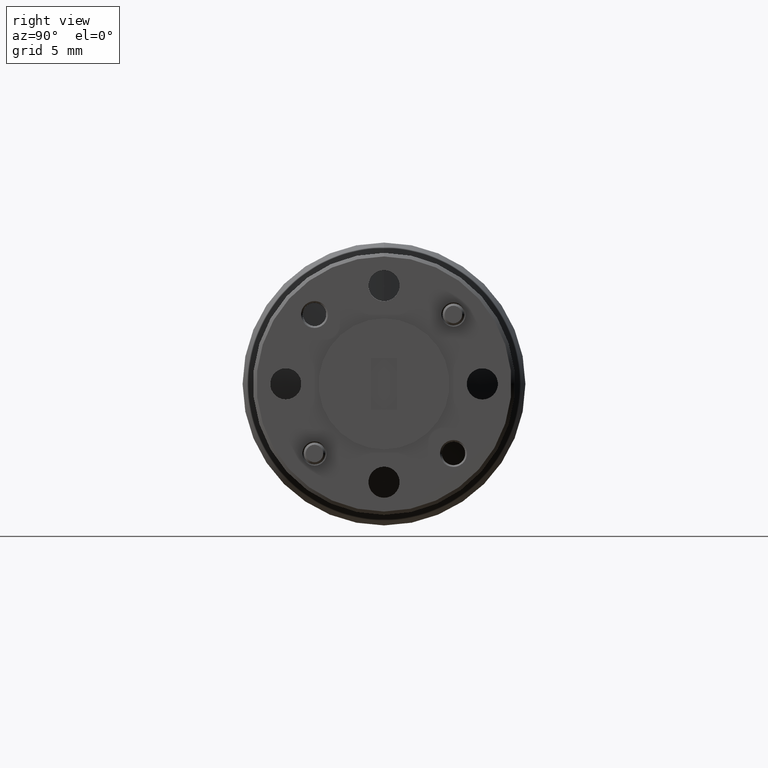
[diagram: clean part render]
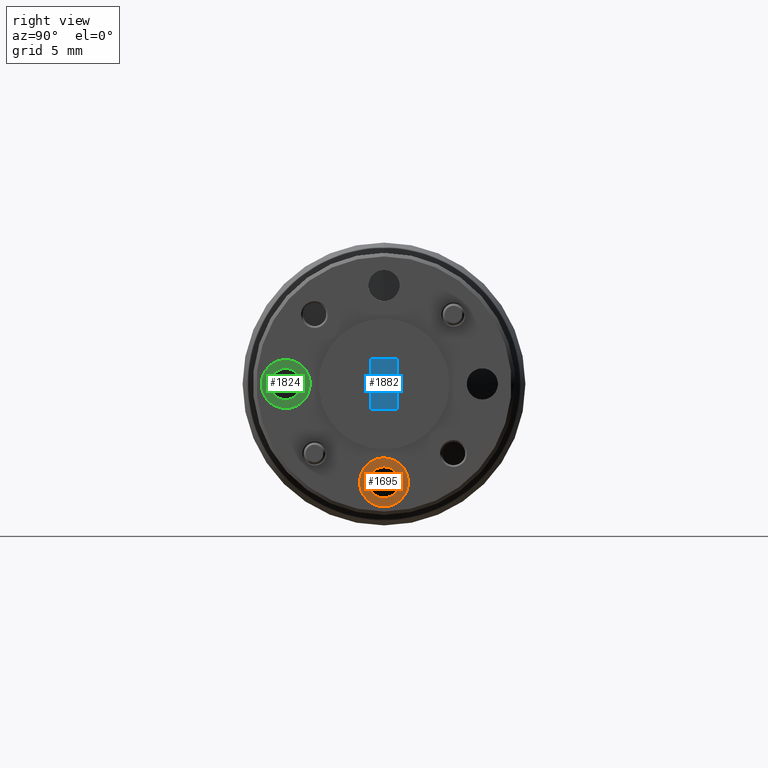
[diagram: same view with three faces highlighted in distinct colors, each labeled with its STEP entity id]
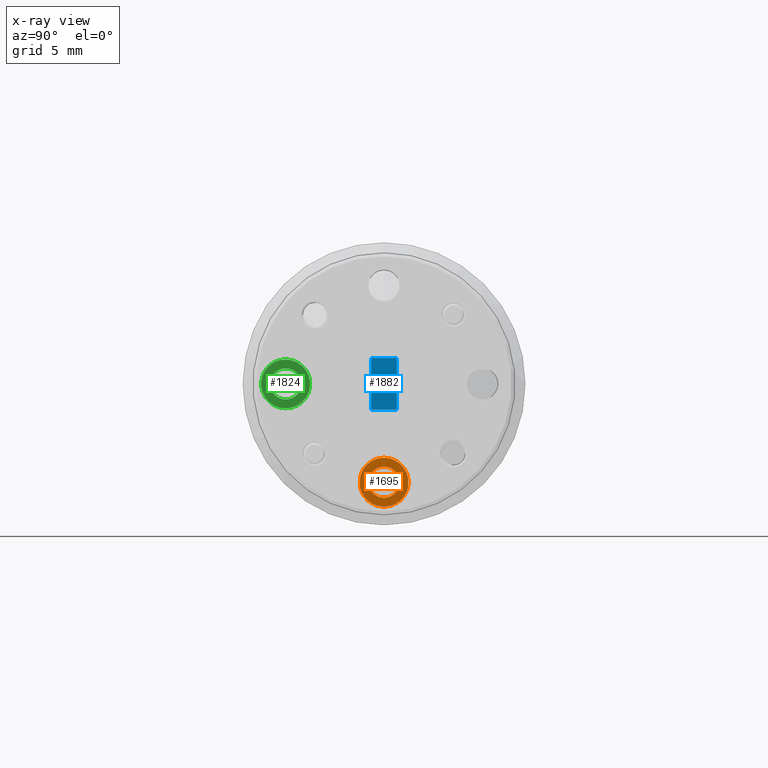
[diagram: x-ray of the same camera — body ghosted, the three highlighted faces saturated]
A machine part, right view with three faces highlighted in distinct colors.
The next image is the same camera in x-ray (body ghosted, the three faces saturated) — at least one of them is partly hidden behind the body in this view.
Their STEP definitions:

[orange] entity #1695 — the highlighted planar face has unit normal (1, 0, 0).
#8 = VERTEX_POINT ( 'NONE', #796 ) ;
#66 = DIRECTION ( 'NONE',  ( 0.0000000000000000000, 0.0000000000000000000, -1.000000000000000000 ) ) ;
#181 = DIRECTION ( 'NONE',  ( -1.000000000000000000, -0.0000000000000000000, -0.0000000000000000000 ) ) ;
#208 = AXIS2_PLACEMENT_3D ( 'NONE', #1189, #181, #1995 ) ;
#349 = ORIENTED_EDGE ( 'NONE', *, *, #1331, .T. ) ;
#367 = CIRCLE ( 'NONE', #1307, 0.07000000000000000700 ) ;
#377 = VERTEX_POINT ( 'NONE', #1713 ) ;
#380 = CARTESIAN_POINT ( 'NONE',  ( 1.157337875290413300, 0.6410890014899649500, 0.6251498391645010600 ) ) ;
#490 = AXIS2_PLACEMENT_3D ( 'NONE', #853, #1676, #1163 ) ;
#554 = DIRECTION ( 'NONE',  ( 0.0000000000000000000, 0.0000000000000000000, -1.000000000000000000 ) ) ;
#792 = FACE_OUTER_BOUND ( 'NONE', #1739, .T. ) ;
#794 = EDGE_CURVE ( 'NONE', #377, #1015, #1382, .T. ) ;
#796 = CARTESIAN_POINT ( 'NONE',  ( 1.157337875290413300, 0.6410890014899649500, 0.5551498391645010000 ) ) ;
#812 = CIRCLE ( 'NONE', #1431, 0.07000000000000000700 ) ;
#851 = ORIENTED_EDGE ( 'NONE', *, *, #794, .T. ) ;
#853 = CARTESIAN_POINT ( 'NONE',  ( 1.157337875290413300, 0.6410890014899649500, 0.6251498391645010600 ) ) ;
#881 = DIRECTION ( 'NONE',  ( 1.000000000000000000, 0.0000000000000000000, 0.0000000000000000000 ) ) ;
#923 = VERTEX_POINT ( 'NONE', #1842 ) ;
#1015 = VERTEX_POINT ( 'NONE', #1645 ) ;
#1081 = CARTESIAN_POINT ( 'NONE',  ( 1.157337875290413300, 0.6410890014899649500, 0.6251498391645010600 ) ) ;
#1163 = DIRECTION ( 'NONE',  ( 0.0000000000000000000, 0.0000000000000000000, -1.000000000000000000 ) ) ;
#1189 = CARTESIAN_POINT ( 'NONE',  ( 1.157337875290413300, 0.6410890014899649500, 0.6251498391645010600 ) ) ;
#1307 = AXIS2_PLACEMENT_3D ( 'NONE', #1905, #1378, #66 ) ;
#1331 = EDGE_CURVE ( 'NONE', #923, #8, #812, .T. ) ;
#1378 = DIRECTION ( 'NONE',  ( 1.000000000000000000, 0.0000000000000000000, 0.0000000000000000000 ) ) ;
#1382 = CIRCLE ( 'NONE', #208, 0.04449999999999975500 ) ;
#1383 = PLANE ( 'NONE',  #1952 ) ;
#1384 = EDGE_CURVE ( 'NONE', #8, #923, #367, .T. ) ;
#1431 = AXIS2_PLACEMENT_3D ( 'NONE', #380, #1741, #554 ) ;
#1607 = EDGE_CURVE ( 'NONE', #1015, #377, #1657, .T. ) ;
#1645 = CARTESIAN_POINT ( 'NONE',  ( 1.157337875290413300, 0.6410890014899649500, 0.5806498391645013000 ) ) ;
#1657 = CIRCLE ( 'NONE', #490, 0.04449999999999975500 ) ;
#1676 = DIRECTION ( 'NONE',  ( -1.000000000000000000, -0.0000000000000000000, -0.0000000000000000000 ) ) ;
#1695 = ADVANCED_FACE ( 'NONE', ( #792, #2070 ), #1383, .T. ) ;
#1713 = CARTESIAN_POINT ( 'NONE',  ( 1.157337875290413300, 0.6410890014899649500, 0.6696498391645008300 ) ) ;
#1739 = EDGE_LOOP ( 'NONE', ( #1980, #349 ) ) ;
#1741 = DIRECTION ( 'NONE',  ( 1.000000000000000000, 0.0000000000000000000, 0.0000000000000000000 ) ) ;
#1842 = CARTESIAN_POINT ( 'NONE',  ( 1.157337875290413300, 0.6410890014899649500, 0.6951498391645009000 ) ) ;
#1905 = CARTESIAN_POINT ( 'NONE',  ( 1.157337875290413300, 0.6410890014899649500, 0.6251498391645010600 ) ) ;
#1952 = AXIS2_PLACEMENT_3D ( 'NONE', #1081, #881, #2072 ) ;
#1980 = ORIENTED_EDGE ( 'NONE', *, *, #1384, .T. ) ;
#1995 = DIRECTION ( 'NONE',  ( 0.0000000000000000000, 0.0000000000000000000, -1.000000000000000000 ) ) ;
#2035 = EDGE_LOOP ( 'NONE', ( #2156, #851 ) ) ;
#2070 = FACE_BOUND ( 'NONE', #2035, .T. ) ;
#2072 = DIRECTION ( 'NONE',  ( 0.0000000000000000000, 0.0000000000000000000, -1.000000000000000000 ) ) ;
#2156 = ORIENTED_EDGE ( 'NONE', *, *, #1607, .T. ) ;

[blue] entity #1882 — the highlighted planar face has unit normal (1, 0, -0).
#144 = LINE ( 'NONE', #1079, #305 ) ;
#205 = EDGE_CURVE ( 'NONE', #1105, #1128, #144, .T. ) ;
#305 = VECTOR ( 'NONE', #1066, 39.37007874015748100 ) ;
#313 = FACE_OUTER_BOUND ( 'NONE', #2030, .T. ) ;
#332 = DIRECTION ( 'NONE',  ( -0.0000000000000000000, 0.0000000000000000000, -1.000000000000000000 ) ) ;
#420 = LINE ( 'NONE', #1206, #2143 ) ;
#592 = CARTESIAN_POINT ( 'NONE',  ( 1.197337875290413100, 0.6780890014899649800, 0.9803998391645010200 ) ) ;
#856 = ORIENTED_EDGE ( 'NONE', *, *, #205, .T. ) ;
#983 = EDGE_CURVE ( 'NONE', #1511, #1943, #1960, .T. ) ;
#1019 = CARTESIAN_POINT ( 'NONE',  ( 1.197337875290413100, 0.6040890014899649200, 0.9803998391645010200 ) ) ;
#1025 = VECTOR ( 'NONE', #1309, 39.37007874015748100 ) ;
#1066 = DIRECTION ( 'NONE',  ( 0.0000000000000000000, 1.000000000000000000, 0.0000000000000000000 ) ) ;
#1079 = CARTESIAN_POINT ( 'NONE',  ( 1.197337875290413100, 0.6040890014899649200, 0.8323998391645011100 ) ) ;
#1105 = VERTEX_POINT ( 'NONE', #1527 ) ;
#1128 = VERTEX_POINT ( 'NONE', #1593 ) ;
#1152 = PLANE ( 'NONE',  #2163 ) ;
#1181 = CARTESIAN_POINT ( 'NONE',  ( 1.197337875290413100, 0.6410890014899649500, 0.9063998391645010600 ) ) ;
#1205 = EDGE_CURVE ( 'NONE', #1943, #1105, #1445, .T. ) ;
#1206 = CARTESIAN_POINT ( 'NONE',  ( 1.197337875290413100, 0.6780890014899649800, 0.8323998391645011100 ) ) ;
#1309 = DIRECTION ( 'NONE',  ( -0.0000000000000000000, -1.000000000000000000, -0.0000000000000000000 ) ) ;
#1316 = EDGE_CURVE ( 'NONE', #1128, #1511, #420, .T. ) ;
#1323 = DIRECTION ( 'NONE',  ( 1.000000000000000000, 0.0000000000000000000, -0.0000000000000000000 ) ) ;
#1445 = LINE ( 'NONE', #1625, #2043 ) ;
#1511 = VERTEX_POINT ( 'NONE', #592 ) ;
#1527 = CARTESIAN_POINT ( 'NONE',  ( 1.197337875290413100, 0.6040890014899649200, 0.8323998391645011100 ) ) ;
#1593 = CARTESIAN_POINT ( 'NONE',  ( 1.197337875290413100, 0.6780890014899649800, 0.8323998391645011100 ) ) ;
#1625 = CARTESIAN_POINT ( 'NONE',  ( 1.197337875290413100, 0.6040890014899649200, 0.8323998391645011100 ) ) ;
#1631 = DIRECTION ( 'NONE',  ( -0.0000000000000000000, 1.153652024351462600E-016, -1.000000000000000000 ) ) ;
#1705 = ORIENTED_EDGE ( 'NONE', *, *, #1205, .T. ) ;
#1706 = DIRECTION ( 'NONE',  ( 0.0000000000000000000, -1.153652024351462600E-016, 1.000000000000000000 ) ) ;
#1882 = ADVANCED_FACE ( 'NONE', ( #313 ), #1152, .T. ) ;
#1943 = VERTEX_POINT ( 'NONE', #1019 ) ;
#1960 = LINE ( 'NONE', #2142, #1025 ) ;
#1998 = ORIENTED_EDGE ( 'NONE', *, *, #983, .T. ) ;
#2030 = EDGE_LOOP ( 'NONE', ( #1998, #1705, #856, #2079 ) ) ;
#2043 = VECTOR ( 'NONE', #1631, 39.37007874015748100 ) ;
#2079 = ORIENTED_EDGE ( 'NONE', *, *, #1316, .T. ) ;
#2142 = CARTESIAN_POINT ( 'NONE',  ( 1.197337875290413100, 0.6040890014899649200, 0.9803998391645010200 ) ) ;
#2143 = VECTOR ( 'NONE', #1706, 39.37007874015748100 ) ;
#2163 = AXIS2_PLACEMENT_3D ( 'NONE', #1181, #1323, #332 ) ;

[green] entity #1824 — the highlighted planar face has unit normal (1, 0, 0).
#79 = EDGE_CURVE ( 'NONE', #1843, #711, #620, .T. ) ;
#113 = CARTESIAN_POINT ( 'NONE',  ( 1.157337875290413300, 0.3598390014899648900, 0.9063998391645010600 ) ) ;
#131 = EDGE_CURVE ( 'NONE', #711, #1843, #1121, .T. ) ;
#189 = DIRECTION ( 'NONE',  ( 0.0000000000000000000, 0.0000000000000000000, -1.000000000000000000 ) ) ;
#226 = DIRECTION ( 'NONE',  ( 0.0000000000000000000, 0.0000000000000000000, -1.000000000000000000 ) ) ;
#248 = CARTESIAN_POINT ( 'NONE',  ( 1.157337875290413300, 0.3598390014899648900, 0.9063998391645010600 ) ) ;
#279 = AXIS2_PLACEMENT_3D ( 'NONE', #823, #516, #320 ) ;
#320 = DIRECTION ( 'NONE',  ( 0.0000000000000000000, 0.0000000000000000000, -1.000000000000000000 ) ) ;
#443 = AXIS2_PLACEMENT_3D ( 'NONE', #1861, #1517, #226 ) ;
#516 = DIRECTION ( 'NONE',  ( -1.000000000000000000, -0.0000000000000000000, -0.0000000000000000000 ) ) ;
#564 = ORIENTED_EDGE ( 'NONE', *, *, #131, .T. ) ;
#571 = EDGE_CURVE ( 'NONE', #1728, #1336, #2151, .T. ) ;
#603 = DIRECTION ( 'NONE',  ( -1.000000000000000000, -0.0000000000000000000, -0.0000000000000000000 ) ) ;
#620 = CIRCLE ( 'NONE', #817, 0.06999999999999993700 ) ;
#671 = ORIENTED_EDGE ( 'NONE', *, *, #79, .T. ) ;
#711 = VERTEX_POINT ( 'NONE', #1145 ) ;
#766 = EDGE_CURVE ( 'NONE', #1336, #1728, #1579, .T. ) ;
#817 = AXIS2_PLACEMENT_3D ( 'NONE', #1185, #1513, #189 ) ;
#818 = FACE_OUTER_BOUND ( 'NONE', #1502, .T. ) ;
#823 = CARTESIAN_POINT ( 'NONE',  ( 1.157337875290413300, 0.3598390014899648900, 0.9063998391645010600 ) ) ;
#833 = AXIS2_PLACEMENT_3D ( 'NONE', #113, #603, #2098 ) ;
#908 = CARTESIAN_POINT ( 'NONE',  ( 1.157337875290413300, 0.3598390014899648900, 0.9508998391645008300 ) ) ;
#958 = AXIS2_PLACEMENT_3D ( 'NONE', #248, #1415, #1748 ) ;
#1054 = ORIENTED_EDGE ( 'NONE', *, *, #571, .T. ) ;
#1121 = CIRCLE ( 'NONE', #443, 0.06999999999999993700 ) ;
#1145 = CARTESIAN_POINT ( 'NONE',  ( 1.157337875290413300, 0.3598390014899648900, 0.9763998391645010200 ) ) ;
#1185 = CARTESIAN_POINT ( 'NONE',  ( 1.157337875290413300, 0.3598390014899648900, 0.9063998391645010600 ) ) ;
#1200 = CARTESIAN_POINT ( 'NONE',  ( 1.157337875290413300, 0.3598390014899648900, 0.8618998391645013000 ) ) ;
#1336 = VERTEX_POINT ( 'NONE', #1200 ) ;
#1415 = DIRECTION ( 'NONE',  ( 1.000000000000000000, 0.0000000000000000000, 0.0000000000000000000 ) ) ;
#1502 = EDGE_LOOP ( 'NONE', ( #671, #564 ) ) ;
#1513 = DIRECTION ( 'NONE',  ( 1.000000000000000000, 0.0000000000000000000, 0.0000000000000000000 ) ) ;
#1517 = DIRECTION ( 'NONE',  ( 1.000000000000000000, 0.0000000000000000000, 0.0000000000000000000 ) ) ;
#1579 = CIRCLE ( 'NONE', #279, 0.04449999999999975500 ) ;
#1728 = VERTEX_POINT ( 'NONE', #908 ) ;
#1748 = DIRECTION ( 'NONE',  ( 0.0000000000000000000, 0.0000000000000000000, -1.000000000000000000 ) ) ;
#1756 = CARTESIAN_POINT ( 'NONE',  ( 1.157337875290413300, 0.3598390014899648900, 0.8363998391645011100 ) ) ;
#1824 = ADVANCED_FACE ( 'NONE', ( #818, #2129 ), #1908, .T. ) ;
#1843 = VERTEX_POINT ( 'NONE', #1756 ) ;
#1861 = CARTESIAN_POINT ( 'NONE',  ( 1.157337875290413300, 0.3598390014899648900, 0.9063998391645010600 ) ) ;
#1908 = PLANE ( 'NONE',  #958 ) ;
#2003 = ORIENTED_EDGE ( 'NONE', *, *, #766, .T. ) ;
#2004 = EDGE_LOOP ( 'NONE', ( #2003, #1054 ) ) ;
#2098 = DIRECTION ( 'NONE',  ( 0.0000000000000000000, 0.0000000000000000000, -1.000000000000000000 ) ) ;
#2129 = FACE_BOUND ( 'NONE', #2004, .T. ) ;
#2151 = CIRCLE ( 'NONE', #833, 0.04449999999999975500 ) ;